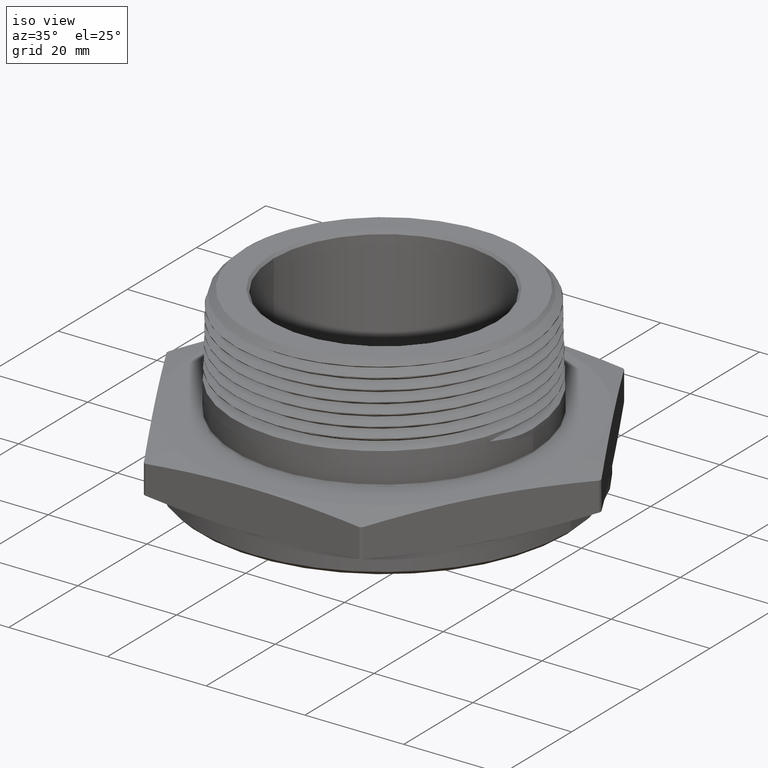
[diagram: clean part render]
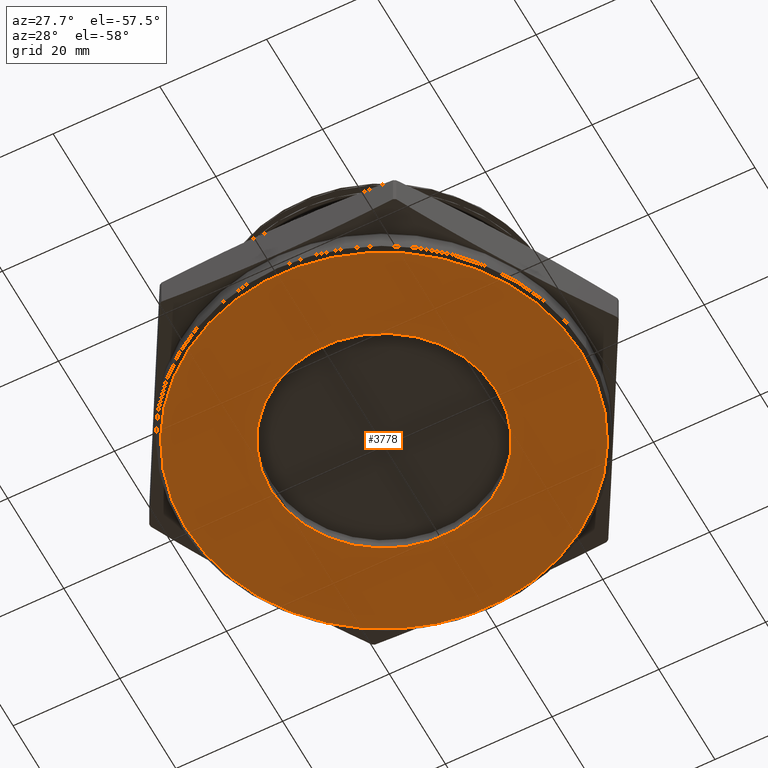
[diagram: tour spotlight — one face highlighted and labeled with its STEP entity id]
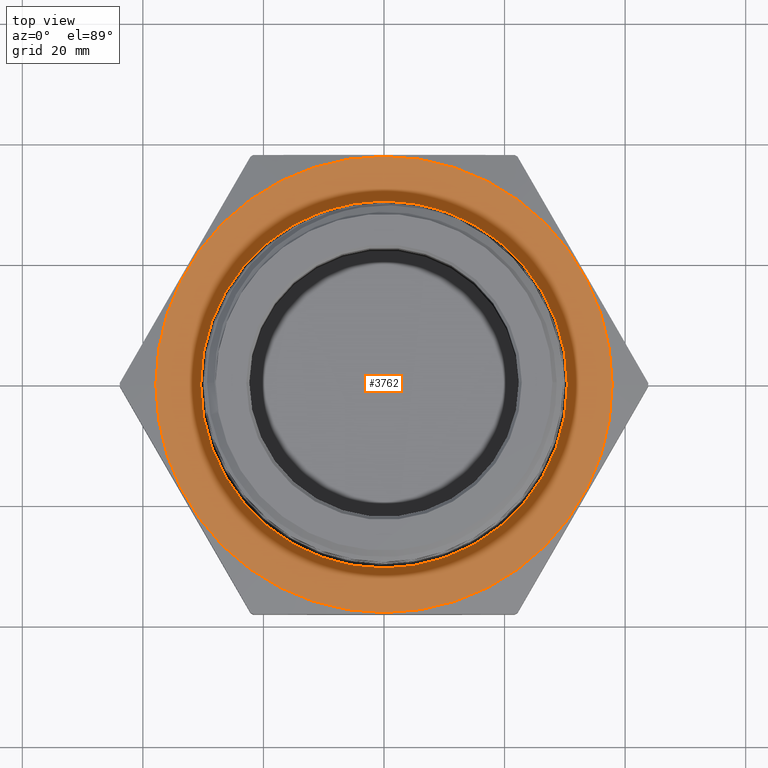
[diagram: tour spotlight — one face highlighted and labeled with its STEP entity id]
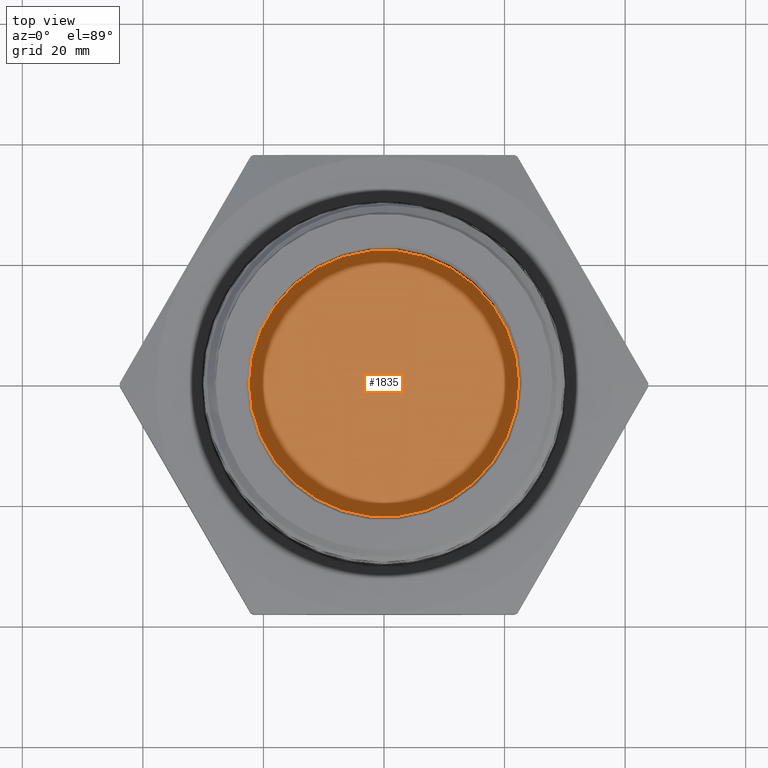
[diagram: tour spotlight — one face highlighted and labeled with its STEP entity id]
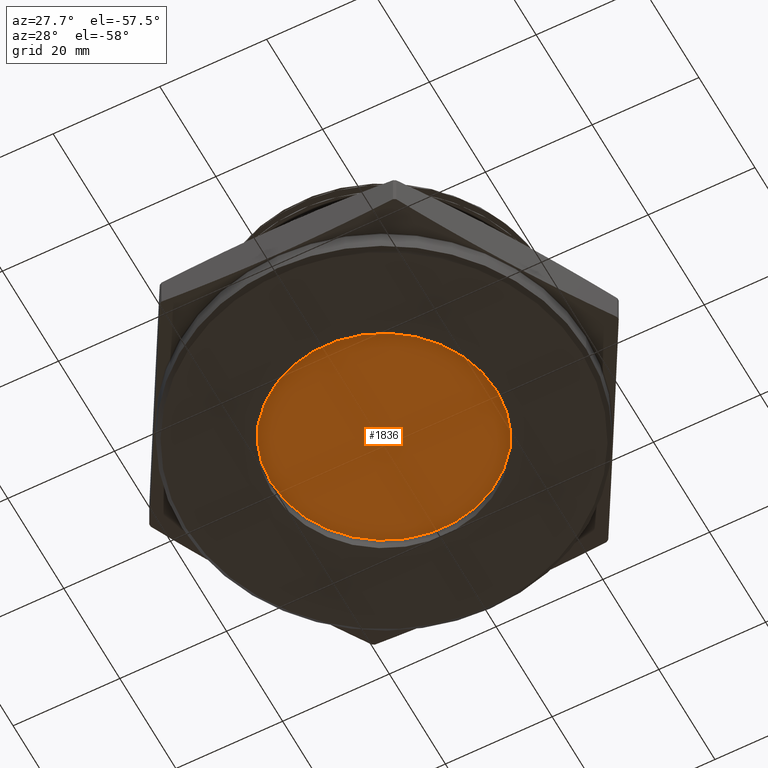
[diagram: tour spotlight — one face highlighted and labeled with its STEP entity id]
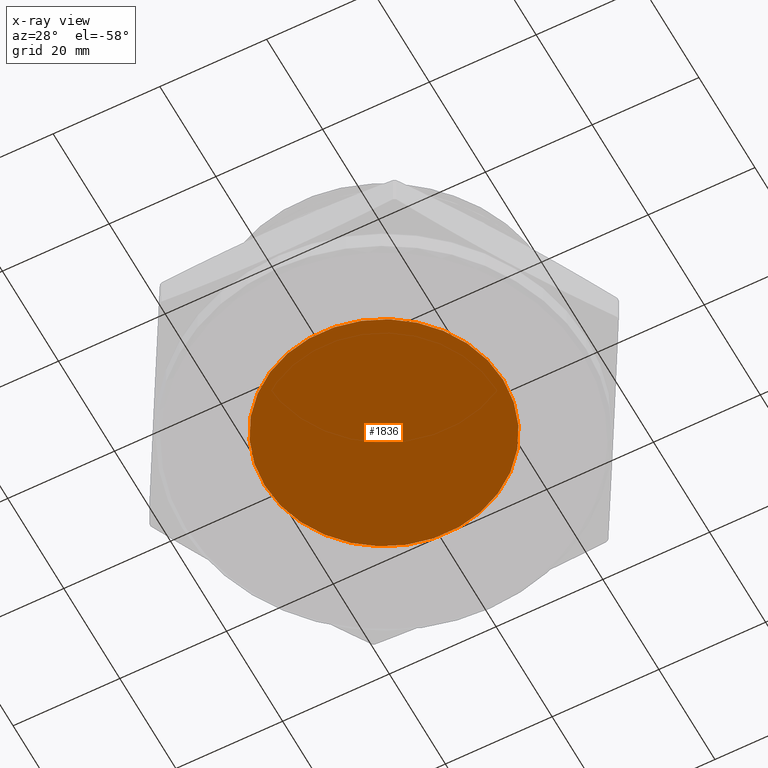
[diagram: x-ray of the same camera — body ghosted, this tour face saturated]
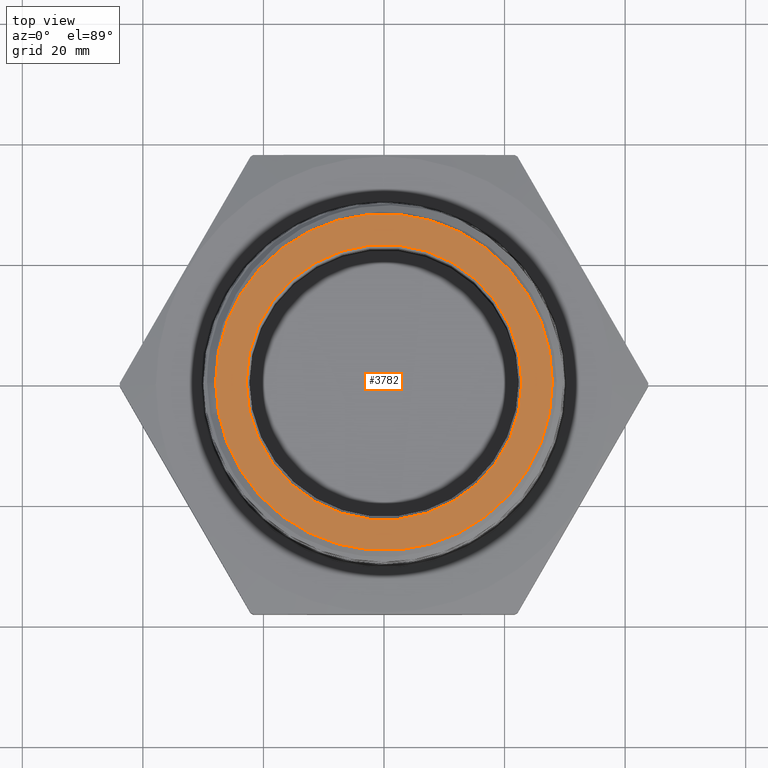
[diagram: tour spotlight — one face highlighted and labeled with its STEP entity id]
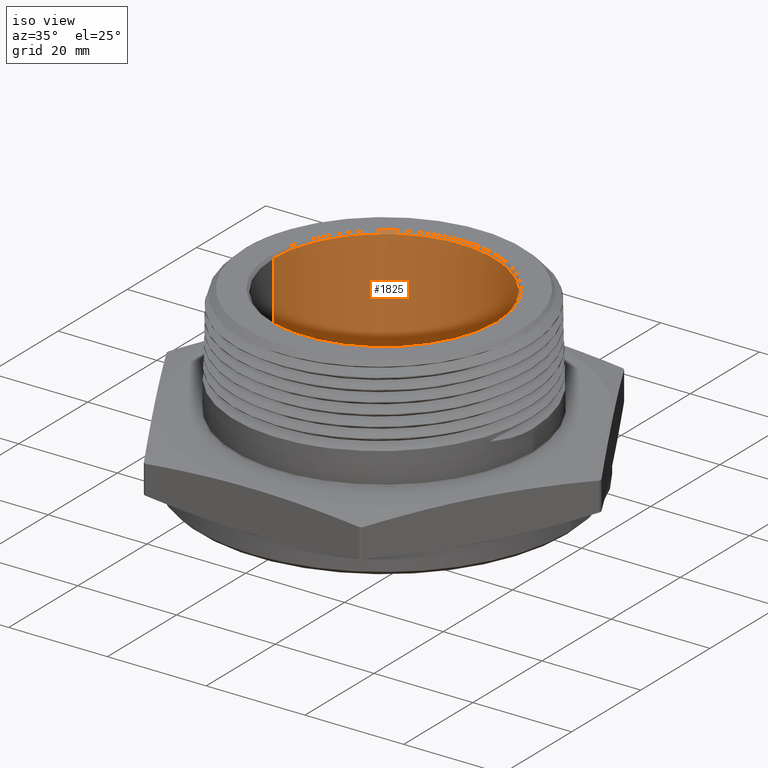
[diagram: tour spotlight — one face highlighted and labeled with its STEP entity id]
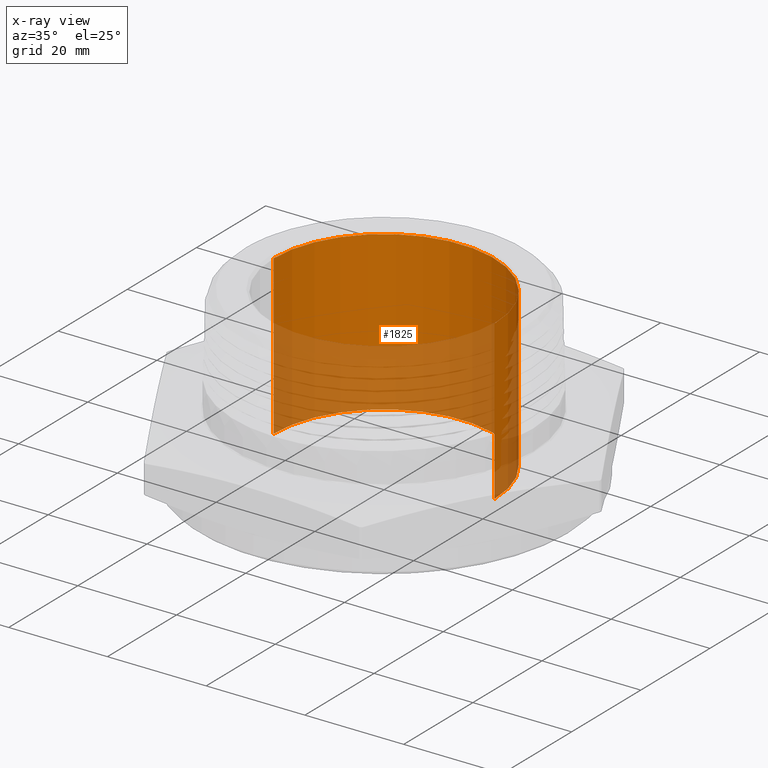
[diagram: x-ray of the same camera — body ghosted, this tour face saturated]
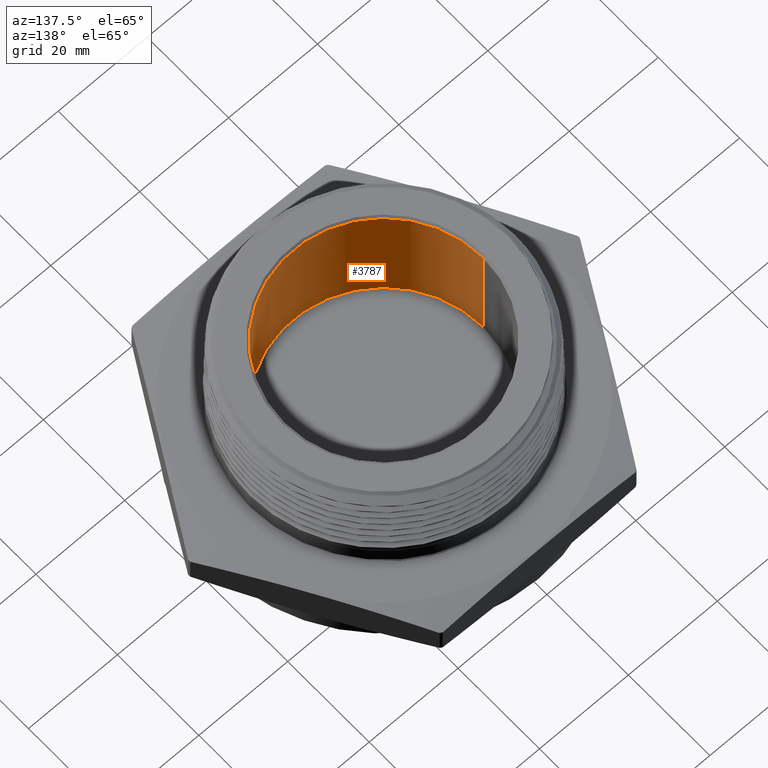
[diagram: tour spotlight — one face highlighted and labeled with its STEP entity id]
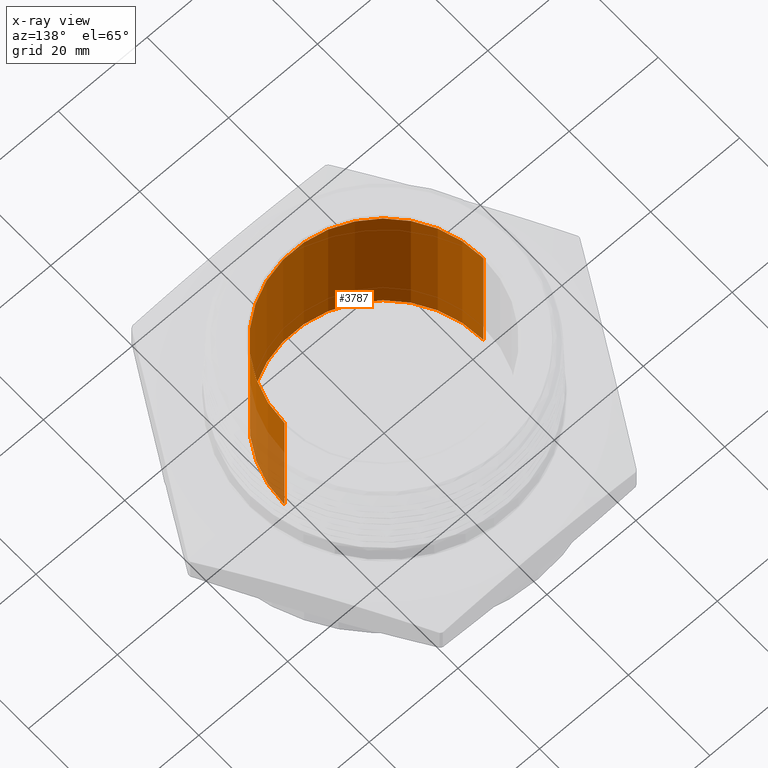
[diagram: x-ray of the same camera — body ghosted, this tour face saturated]
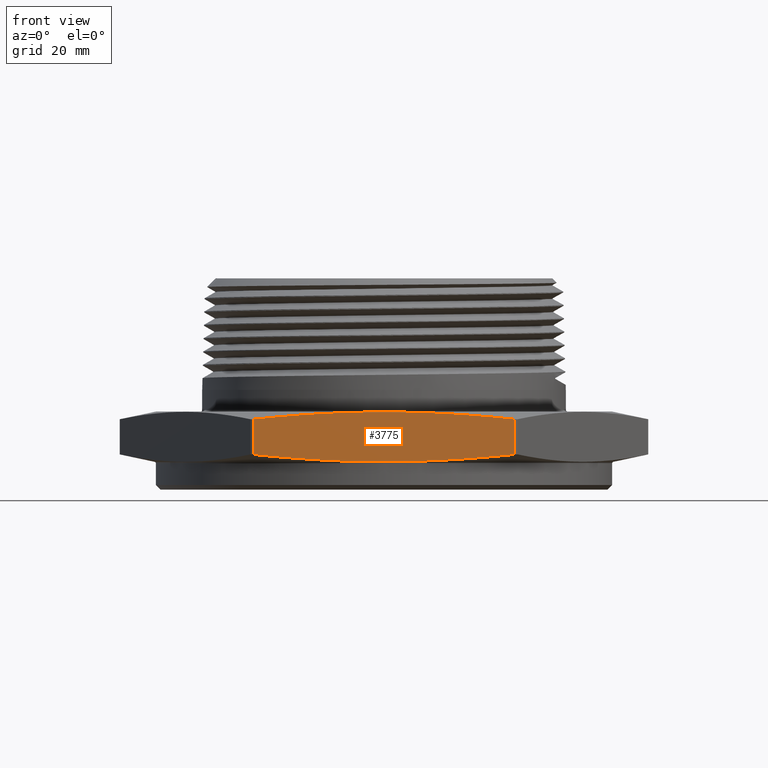
[diagram: tour spotlight — one face highlighted and labeled with its STEP entity id]
A machine part: a face-by-face anatomy tour. The part has 65 B-rep faces; the first image is the clean iso view, then the 8 largest visible faces are spotlighted one at a time (largest first), each with its STEP entity span.

Face 1 — auxiliary view, entity #3778. In plain terms, the highlighted planar face has unit normal (0, 0, -1).
Definition (entity closure, byte-faithful):
#1408 = AXIS2_PLACEMENT_3D ( 'NONE', #3516, #3515, #3520 ) ;
#1434 = AXIS2_PLACEMENT_3D ( 'NONE', #2427, #2428, #2429 ) ;
#1435 = AXIS2_PLACEMENT_3D ( 'NONE', #2430, #2431, #2432 ) ;
#1451 = AXIS2_PLACEMENT_3D ( 'NONE', #7502, #7503, #7504 ) ;
#1452 = AXIS2_PLACEMENT_3D ( 'NONE', #7508, #7509, #7510 ) ;
#1610 = VERTEX_POINT ( 'NONE', #7051 ) ;
#1614 = VERTEX_POINT ( 'NONE', #7047 ) ;
#1624 = VERTEX_POINT ( 'NONE', #7033 ) ;
#1645 = VERTEX_POINT ( 'NONE', #7012 ) ;
#1667 = EDGE_LOOP ( 'NONE', ( #7119, #7121 ) ) ;
#1677 = EDGE_LOOP ( 'NONE', ( #7112, #7113 ) ) ;
#2427 = CARTESIAN_POINT ( 'NONE',  ( 3.673940397442043000E-018, 0.0000000000000000000, -0.1800000000000000200 ) ) ;
#2428 = DIRECTION ( 'NONE',  ( -3.343854012755361800E-017, -0.0000000000000000000, -1.000000000000000000 ) ) ;
#2429 = DIRECTION ( 'NONE',  ( -1.000000000000000000, 0.0000000000000000000, 4.104338932788856500E-017 ) ) ;
#2430 = CARTESIAN_POINT ( 'NONE',  ( 0.0000000000000000000, 0.0000000000000000000, -0.1799999999999999900 ) ) ;
#2431 = DIRECTION ( 'NONE',  ( 0.0000000000000000000, 0.0000000000000000000, -1.000000000000000000 ) ) ;
#2432 = DIRECTION ( 'NONE',  ( -1.000000000000000000, 0.0000000000000000000, 0.0000000000000000000 ) ) ;
#3515 = DIRECTION ( 'NONE',  ( 0.0000000000000000000, 0.0000000000000000000, -1.000000000000000000 ) ) ;
#3516 = CARTESIAN_POINT ( 'NONE',  ( 0.0000000000000000000, 0.0000000000000000000, -0.1799999999999999900 ) ) ;
#3518 = PLANE ( 'NONE',  #1408 ) ;
#3520 = DIRECTION ( 'NONE',  ( -1.000000000000000000, 0.0000000000000000000, -0.0000000000000000000 ) ) ;
#3778 = ADVANCED_FACE ( 'NONE', ( #7711, #7719 ), #3518, .T. ) ;
#3990 = EDGE_CURVE ( 'NONE', #1614, #1645, #7822, .T. ) ;
#3991 = EDGE_CURVE ( 'NONE', #1610, #1624, #7814, .T. ) ;
#4023 = EDGE_CURVE ( 'NONE', #1624, #1610, #7856, .T. ) ;
#4025 = EDGE_CURVE ( 'NONE', #1645, #1614, #7861, .T. ) ;
#7012 = CARTESIAN_POINT ( 'NONE',  ( 0.8320000000000000700, 1.018906136890598000E-016, -0.1800000000000000500 ) ) ;
#7033 = CARTESIAN_POINT ( 'NONE',  ( -1.460000000000002000, 1.806354028742347500E-016, -0.1799999999999999900 ) ) ;
#7047 = CARTESIAN_POINT ( 'NONE',  ( -0.8320000000000000700, 0.0000000000000000000, -0.1799999999999999900 ) ) ;
#7051 = CARTESIAN_POINT ( 'NONE',  ( 1.460000000000002000, 0.0000000000000000000, -0.1799999999999999900 ) ) ;
#7112 = ORIENTED_EDGE ( 'NONE', *, *, #3990, .F. ) ;
#7113 = ORIENTED_EDGE ( 'NONE', *, *, #4025, .F. ) ;
#7119 = ORIENTED_EDGE ( 'NONE', *, *, #3991, .T. ) ;
#7121 = ORIENTED_EDGE ( 'NONE', *, *, #4023, .T. ) ;
#7502 = CARTESIAN_POINT ( 'NONE',  ( 0.0000000000000000000, 0.0000000000000000000, -0.1799999999999999900 ) ) ;
#7503 = DIRECTION ( 'NONE',  ( 0.0000000000000000000, 0.0000000000000000000, -1.000000000000000000 ) ) ;
#7504 = DIRECTION ( 'NONE',  ( -1.000000000000000000, 0.0000000000000000000, 0.0000000000000000000 ) ) ;
#7508 = CARTESIAN_POINT ( 'NONE',  ( 3.673940397442043000E-018, 0.0000000000000000000, -0.1800000000000000200 ) ) ;
#7509 = DIRECTION ( 'NONE',  ( -3.343854012755361800E-017, -0.0000000000000000000, -1.000000000000000000 ) ) ;
#7510 = DIRECTION ( 'NONE',  ( -1.000000000000000000, 0.0000000000000000000, 4.104338932788856500E-017 ) ) ;
#7711 = FACE_BOUND ( 'NONE', #1677, .T. ) ;
#7719 = FACE_OUTER_BOUND ( 'NONE', #1667, .T. ) ;
#7814 = CIRCLE ( 'NONE', #1435, 1.460000000000002000 ) ;
#7822 = CIRCLE ( 'NONE', #1434, 0.8320000000000000700 ) ;
#7856 = CIRCLE ( 'NONE', #1451, 1.460000000000002000 ) ;
#7861 = CIRCLE ( 'NONE', #1452, 0.8320000000000000700 ) ;

Face 2 — top view, entity #3762. In plain terms, the highlighted planar face has unit normal (-0, 0, 1).
Definition (entity closure, byte-faithful):
#1337 = EDGE_CURVE ( 'NONE', #1619, #1613, #1729, .T. ) ;
#1351 = AXIS2_PLACEMENT_3D ( 'NONE', #7623, #7622, #7621 ) ;
#1392 = AXIS2_PLACEMENT_3D ( 'NONE', #3461, #3460, #3465 ) ;
#1425 = AXIS2_PLACEMENT_3D ( 'NONE', #2320, #2321, #2322 ) ;
#1426 = AXIS2_PLACEMENT_3D ( 'NONE', #2325, #2326, #2327 ) ;
#1447 = AXIS2_PLACEMENT_3D ( 'NONE', #7465, #7466, #7467 ) ;
#1612 = VERTEX_POINT ( 'NONE', #7049 ) ;
#1613 = VERTEX_POINT ( 'NONE', #7048 ) ;
#1619 = VERTEX_POINT ( 'NONE', #7042 ) ;
#1640 = VERTEX_POINT ( 'NONE', #7017 ) ;
#1685 = EDGE_LOOP ( 'NONE', ( #6851, #6850 ) ) ;
#1689 = EDGE_LOOP ( 'NONE', ( #6854, #6855 ) ) ;
#1729 = CIRCLE ( 'NONE', #1351, 1.197500000000000200 ) ;
#2320 = CARTESIAN_POINT ( 'NONE',  ( 4.141455608242866600E-017, 0.0000000000000000000, 0.3299999999999998500 ) ) ;
#2321 = DIRECTION ( 'NONE',  ( -1.254986547952384500E-016, -0.0000000000000000000, -1.000000000000000000 ) ) ;
#2322 = DIRECTION ( 'NONE',  ( -1.000000000000000000, 0.0000000000000000000, 1.375091271978655600E-016 ) ) ;
#2325 = CARTESIAN_POINT ( 'NONE',  ( 0.0000000000000000000, 0.0000000000000000000, 0.3300000000000000200 ) ) ;
#2326 = DIRECTION ( 'NONE',  ( 0.0000000000000000000, -0.0000000000000000000, -1.000000000000000000 ) ) ;
#2327 = DIRECTION ( 'NONE',  ( 1.000000000000000000, 0.0000000000000000000, 0.0000000000000000000 ) ) ;
#3460 = DIRECTION ( 'NONE',  ( -0.0000000000000000000, 0.0000000000000000000, 1.000000000000000000 ) ) ;
#3461 = CARTESIAN_POINT ( 'NONE',  ( -0.8660254037844384900, -1.499999999999999800, 0.3300000000000000200 ) ) ;
#3463 = PLANE ( 'NONE',  #1392 ) ;
#3465 = DIRECTION ( 'NONE',  ( 1.000000000000000000, 0.0000000000000000000, 0.0000000000000000000 ) ) ;
#3762 = ADVANCED_FACE ( 'NONE', ( #7691, #7693 ), #3463, .T. ) ;
#3964 = EDGE_CURVE ( 'NONE', #1612, #1640, #7791, .T. ) ;
#3965 = EDGE_CURVE ( 'NONE', #1613, #1619, #7783, .T. ) ;
#4016 = EDGE_CURVE ( 'NONE', #1640, #1612, #7853, .T. ) ;
#6850 = ORIENTED_EDGE ( 'NONE', *, *, #3965, .T. ) ;
#6851 = ORIENTED_EDGE ( 'NONE', *, *, #1337, .T. ) ;
#6854 = ORIENTED_EDGE ( 'NONE', *, *, #4016, .F. ) ;
#6855 = ORIENTED_EDGE ( 'NONE', *, *, #3964, .F. ) ;
#7017 = CARTESIAN_POINT ( 'NONE',  ( -1.490000000000000400, 0.0000000000000000000, 0.3300000000000000200 ) ) ;
#7042 = CARTESIAN_POINT ( 'NONE',  ( 1.197500000000000200, 0.0000000000000000000, 0.3300000000000000200 ) ) ;
#7048 = CARTESIAN_POINT ( 'NONE',  ( -1.197500000000000200, 1.466514541978955900E-016, 0.3300000000000000200 ) ) ;
#7049 = CARTESIAN_POINT ( 'NONE',  ( 1.490000000000000400, 1.824723730729556900E-016, 0.3299999999999996300 ) ) ;
#7465 = CARTESIAN_POINT ( 'NONE',  ( 4.141455608242866600E-017, 0.0000000000000000000, 0.3299999999999998500 ) ) ;
#7466 = DIRECTION ( 'NONE',  ( -1.254986547952384500E-016, -0.0000000000000000000, -1.000000000000000000 ) ) ;
#7467 = DIRECTION ( 'NONE',  ( -1.000000000000000000, 0.0000000000000000000, 1.375091271978655600E-016 ) ) ;
#7621 = DIRECTION ( 'NONE',  ( 1.000000000000000000, 0.0000000000000000000, 0.0000000000000000000 ) ) ;
#7622 = DIRECTION ( 'NONE',  ( 0.0000000000000000000, -0.0000000000000000000, -1.000000000000000000 ) ) ;
#7623 = CARTESIAN_POINT ( 'NONE',  ( 0.0000000000000000000, 0.0000000000000000000, 0.3300000000000000200 ) ) ;
#7691 = FACE_OUTER_BOUND ( 'NONE', #1689, .T. ) ;
#7693 = FACE_BOUND ( 'NONE', #1685, .T. ) ;
#7783 = CIRCLE ( 'NONE', #1426, 1.197500000000000200 ) ;
#7791 = CIRCLE ( 'NONE', #1425, 1.490000000000000400 ) ;
#7853 = CIRCLE ( 'NONE', #1447, 1.490000000000000400 ) ;

Face 3 — top view, entity #1835. In plain terms, the highlighted planar face has unit normal (0, 0, 1).
Definition (entity closure, byte-faithful):
#1376 = AXIS2_PLACEMENT_3D ( 'NONE', #3413, #3417, #3418 ) ;
#1440 = AXIS2_PLACEMENT_3D ( 'NONE', #7422, #7423, #7424 ) ;
#1442 = AXIS2_PLACEMENT_3D ( 'NONE', #7428, #7429, #7430 ) ;
#1507 = VERTEX_POINT ( 'NONE', #7591 ) ;
#1535 = VERTEX_POINT ( 'NONE', #6970 ) ;
#1651 = EDGE_LOOP ( 'NONE', ( #6842, #6820 ) ) ;
#1835 = ADVANCED_FACE ( 'NONE', ( #7661 ), #3415, .T. ) ;
#3413 = CARTESIAN_POINT ( 'NONE',  ( 6.884040249687191000E-018, 0.0000000000000000000, 0.1160000000000000100 ) ) ;
#3415 = PLANE ( 'NONE',  #1376 ) ;
#3417 = DIRECTION ( 'NONE',  ( 0.0000000000000000000, 0.0000000000000000000, 1.000000000000000000 ) ) ;
#3418 = DIRECTION ( 'NONE',  ( 1.000000000000000000, 0.0000000000000000000, -0.0000000000000000000 ) ) ;
#4004 = EDGE_CURVE ( 'NONE', #1535, #1507, #7833, .T. ) ;
#4007 = EDGE_CURVE ( 'NONE', #1507, #1535, #7841, .T. ) ;
#6820 = ORIENTED_EDGE ( 'NONE', *, *, #4004, .T. ) ;
#6842 = ORIENTED_EDGE ( 'NONE', *, *, #4007, .T. ) ;
#6970 = CARTESIAN_POINT ( 'NONE',  ( 0.8800000000000000000, 1.077689183249670900E-016, 0.1160000000000000100 ) ) ;
#7422 = CARTESIAN_POINT ( 'NONE',  ( 6.884040249687191000E-018, 0.0000000000000000000, 0.1160000000000000100 ) ) ;
#7423 = DIRECTION ( 'NONE',  ( 0.0000000000000000000, 0.0000000000000000000, 1.000000000000000000 ) ) ;
#7424 = DIRECTION ( 'NONE',  ( 1.000000000000000000, 0.0000000000000000000, 0.0000000000000000000 ) ) ;
#7428 = CARTESIAN_POINT ( 'NONE',  ( 6.884040249687191000E-018, 0.0000000000000000000, 0.1160000000000000100 ) ) ;
#7429 = DIRECTION ( 'NONE',  ( 0.0000000000000000000, 0.0000000000000000000, 1.000000000000000000 ) ) ;
#7430 = DIRECTION ( 'NONE',  ( 1.000000000000000000, 0.0000000000000000000, 0.0000000000000000000 ) ) ;
#7591 = CARTESIAN_POINT ( 'NONE',  ( -0.8800000000000000000, 0.0000000000000000000, 0.1160000000000000100 ) ) ;
#7661 = FACE_OUTER_BOUND ( 'NONE', #1651, .T. ) ;
#7833 = CIRCLE ( 'NONE', #1440, 0.8800000000000000000 ) ;
#7841 = CIRCLE ( 'NONE', #1442, 0.8800000000000000000 ) ;

Face 4 — auxiliary view, entity #1836. An x-ray twin of the same camera follows (body ghosted, this face saturated) — the face is partly hidden behind the body. In plain terms, the highlighted planar face has unit normal (0, 0, 1).
Definition (entity closure, byte-faithful):
#1378 = AXIS2_PLACEMENT_3D ( 'NONE', #3416, #3421, #3422 ) ;
#1441 = AXIS2_PLACEMENT_3D ( 'NONE', #7425, #7426, #7427 ) ;
#1443 = AXIS2_PLACEMENT_3D ( 'NONE', #7433, #7434, #7435 ) ;
#1526 = VERTEX_POINT ( 'NONE', #7057 ) ;
#1527 = VERTEX_POINT ( 'NONE', #7038 ) ;
#1836 = ADVANCED_FACE ( 'NONE', ( #7660 ), #3414, .F. ) ;
#3414 = PLANE ( 'NONE',  #1378 ) ;
#3416 = CARTESIAN_POINT ( 'NONE',  ( 6.884040249687191000E-018, 0.0000000000000000000, -0.08400000000000001900 ) ) ;
#3421 = DIRECTION ( 'NONE',  ( 0.0000000000000000000, 0.0000000000000000000, 1.000000000000000000 ) ) ;
#3422 = DIRECTION ( 'NONE',  ( 1.000000000000000000, 0.0000000000000000000, -0.0000000000000000000 ) ) ;
#3866 = EDGE_LOOP ( 'NONE', ( #6819, #6853 ) ) ;
#4005 = EDGE_CURVE ( 'NONE', #1526, #1527, #7839, .T. ) ;
#4008 = EDGE_CURVE ( 'NONE', #1527, #1526, #7845, .T. ) ;
#6819 = ORIENTED_EDGE ( 'NONE', *, *, #4008, .F. ) ;
#6853 = ORIENTED_EDGE ( 'NONE', *, *, #4005, .F. ) ;
#7038 = CARTESIAN_POINT ( 'NONE',  ( -0.8800000000000000000, 0.0000000000000000000, -0.08400000000000001900 ) ) ;
#7057 = CARTESIAN_POINT ( 'NONE',  ( 0.8800000000000000000, 1.077689183249670900E-016, -0.08400000000000001900 ) ) ;
#7425 = CARTESIAN_POINT ( 'NONE',  ( 6.884040249687191000E-018, 0.0000000000000000000, -0.08400000000000001900 ) ) ;
#7426 = DIRECTION ( 'NONE',  ( 0.0000000000000000000, 0.0000000000000000000, 1.000000000000000000 ) ) ;
#7427 = DIRECTION ( 'NONE',  ( 1.000000000000000000, 0.0000000000000000000, 0.0000000000000000000 ) ) ;
#7433 = CARTESIAN_POINT ( 'NONE',  ( 6.884040249687191000E-018, 0.0000000000000000000, -0.08400000000000001900 ) ) ;
#7434 = DIRECTION ( 'NONE',  ( 0.0000000000000000000, 0.0000000000000000000, 1.000000000000000000 ) ) ;
#7435 = DIRECTION ( 'NONE',  ( 1.000000000000000000, 0.0000000000000000000, 0.0000000000000000000 ) ) ;
#7660 = FACE_OUTER_BOUND ( 'NONE', #3866, .T. ) ;
#7839 = CIRCLE ( 'NONE', #1441, 0.8800000000000000000 ) ;
#7845 = CIRCLE ( 'NONE', #1443, 0.8800000000000000000 ) ;

Face 5 — top view, entity #3782. In plain terms, the highlighted planar face has unit normal (0, 0, 1).
Definition (entity closure, byte-faithful):
#1412 = AXIS2_PLACEMENT_3D ( 'NONE', #3529, #3528, #3533 ) ;
#1421 = AXIS2_PLACEMENT_3D ( 'NONE', #3574, #3575, #3576 ) ;
#1422 = AXIS2_PLACEMENT_3D ( 'NONE', #3644, #3645, #3646 ) ;
#1436 = AXIS2_PLACEMENT_3D ( 'NONE', #2433, #2434, #2435 ) ;
#1455 = AXIS2_PLACEMENT_3D ( 'NONE', #7523, #7524, #7525 ) ;
#1595 = VERTEX_POINT ( 'NONE', #6971 ) ;
#1608 = VERTEX_POINT ( 'NONE', #7053 ) ;
#1643 = VERTEX_POINT ( 'NONE', #7014 ) ;
#1646 = VERTEX_POINT ( 'NONE', #7011 ) ;
#1663 = EDGE_LOOP ( 'NONE', ( #6841, #6844 ) ) ;
#1666 = EDGE_LOOP ( 'NONE', ( #7110, #6843 ) ) ;
#2433 = CARTESIAN_POINT ( 'NONE',  ( 4.981912577346603700E-017, 0.0000000000000000000, 1.200000000000000000 ) ) ;
#2434 = DIRECTION ( 'NONE',  ( -3.343854012755361800E-017, -0.0000000000000000000, -1.000000000000000000 ) ) ;
#2435 = DIRECTION ( 'NONE',  ( -1.000000000000000000, 0.0000000000000000000, 0.0000000000000000000 ) ) ;
#3528 = DIRECTION ( 'NONE',  ( 0.0000000000000000000, 0.0000000000000000000, 1.000000000000000000 ) ) ;
#3529 = CARTESIAN_POINT ( 'NONE',  ( 0.0000000000000000000, 0.0000000000000000000, 1.200000000000000000 ) ) ;
#3531 = PLANE ( 'NONE',  #1412 ) ;
#3533 = DIRECTION ( 'NONE',  ( 1.000000000000000000, 0.0000000000000000000, -0.0000000000000000000 ) ) ;
#3574 = CARTESIAN_POINT ( 'NONE',  ( 0.0000000000000000000, 0.0000000000000000000, 1.200000000000000000 ) ) ;
#3575 = DIRECTION ( 'NONE',  ( -0.0000000000000000000, -0.0000000000000000000, -1.000000000000000000 ) ) ;
#3576 = DIRECTION ( 'NONE',  ( -1.000000000000000000, 0.0000000000000000000, 0.0000000000000000000 ) ) ;
#3644 = CARTESIAN_POINT ( 'NONE',  ( 0.0000000000000000000, 0.0000000000000000000, 1.200000000000000000 ) ) ;
#3645 = DIRECTION ( 'NONE',  ( -0.0000000000000000000, -0.0000000000000000000, -1.000000000000000000 ) ) ;
#3646 = DIRECTION ( 'NONE',  ( -1.000000000000000000, 0.0000000000000000000, 0.0000000000000000000 ) ) ;
#3782 = ADVANCED_FACE ( 'NONE', ( #7667, #7717 ), #3531, .T. ) ;
#3904 = EDGE_CURVE ( 'NONE', #1608, #1646, #7750, .T. ) ;
#3909 = EDGE_CURVE ( 'NONE', #1646, #1608, #7752, .T. ) ;
#3992 = EDGE_CURVE ( 'NONE', #1643, #1595, #7823, .T. ) ;
#4032 = EDGE_CURVE ( 'NONE', #1595, #1643, #7872, .T. ) ;
#6841 = ORIENTED_EDGE ( 'NONE', *, *, #3904, .F. ) ;
#6843 = ORIENTED_EDGE ( 'NONE', *, *, #3992, .T. ) ;
#6844 = ORIENTED_EDGE ( 'NONE', *, *, #3909, .F. ) ;
#6971 = CARTESIAN_POINT ( 'NONE',  ( 0.8999999999999996900, 0.0000000000000000000, 1.200000000000000000 ) ) ;
#7011 = CARTESIAN_POINT ( 'NONE',  ( 1.099700000000000100, 1.381438622983947700E-016, 1.200000000000000000 ) ) ;
#7014 = CARTESIAN_POINT ( 'NONE',  ( -0.8999999999999996900, 1.102182119232617500E-016, 1.200000000000000000 ) ) ;
#7053 = CARTESIAN_POINT ( 'NONE',  ( -1.099700000000000100, 0.0000000000000000000, 1.200000000000000000 ) ) ;
#7110 = ORIENTED_EDGE ( 'NONE', *, *, #4032, .T. ) ;
#7523 = CARTESIAN_POINT ( 'NONE',  ( 4.981912577346603700E-017, 0.0000000000000000000, 1.200000000000000000 ) ) ;
#7524 = DIRECTION ( 'NONE',  ( -3.343854012755361800E-017, -0.0000000000000000000, -1.000000000000000000 ) ) ;
#7525 = DIRECTION ( 'NONE',  ( -1.000000000000000000, 0.0000000000000000000, 0.0000000000000000000 ) ) ;
#7667 = FACE_BOUND ( 'NONE', #1666, .T. ) ;
#7717 = FACE_OUTER_BOUND ( 'NONE', #1663, .T. ) ;
#7750 = CIRCLE ( 'NONE', #1421, 1.099700000000000100 ) ;
#7752 = CIRCLE ( 'NONE', #1422, 1.099700000000000100 ) ;
#7823 = CIRCLE ( 'NONE', #1436, 0.8999999999999996900 ) ;
#7872 = CIRCLE ( 'NONE', #1455, 0.8999999999999996900 ) ;

Face 6 — iso view, entity #1825. An x-ray twin of the same camera follows (body ghosted, this face saturated) — the face is partly hidden behind the body. In plain terms, the highlighted cylindrical surface (partial cylindrical patch) has radius 22.352 mm, axis along (-0, -0, -1).
Definition (entity closure, byte-faithful):
#1370 = AXIS2_PLACEMENT_3D ( 'NONE', #6960, #6959, #6961 ) ;
#1438 = AXIS2_PLACEMENT_3D ( 'NONE', #2439, #2440, #2441 ) ;
#1439 = AXIS2_PLACEMENT_3D ( 'NONE', #2444, #2445, #2446 ) ;
#1593 = VERTEX_POINT ( 'NONE', #7075 ) ;
#1620 = VERTEX_POINT ( 'NONE', #7041 ) ;
#1633 = VERTEX_POINT ( 'NONE', #7024 ) ;
#1641 = VERTEX_POINT ( 'NONE', #7016 ) ;
#1662 = EDGE_LOOP ( 'NONE', ( #6832, #6831, #3869, #3872 ) ) ;
#1745 = CYLINDRICAL_SURFACE ( 'NONE', #1370, 0.8799999999999998900 ) ;
#1764 = FACE_OUTER_BOUND ( 'NONE', #1662, .T. ) ;
#1825 = ADVANCED_FACE ( 'NONE', ( #1764 ), #1745, .F. ) ;
#2439 = CARTESIAN_POINT ( 'NONE',  ( 6.884040249687191000E-018, 0.0000000000000000000, -0.08400000000000001900 ) ) ;
#2440 = DIRECTION ( 'NONE',  ( -3.343854012755361800E-017, -0.0000000000000000000, -1.000000000000000000 ) ) ;
#2441 = DIRECTION ( 'NONE',  ( -1.000000000000000000, 0.0000000000000000000, 3.880465900091283000E-017 ) ) ;
#2444 = CARTESIAN_POINT ( 'NONE',  ( 4.915035497091496200E-017, 0.0000000000000000000, 1.179999999999999900 ) ) ;
#2445 = DIRECTION ( 'NONE',  ( -3.343854012755361800E-017, -0.0000000000000000000, -1.000000000000000000 ) ) ;
#2446 = DIRECTION ( 'NONE',  ( -1.000000000000000000, 0.0000000000000000000, 0.0000000000000000000 ) ) ;
#3869 = ORIENTED_EDGE ( 'NONE', *, *, #4028, .T. ) ;
#3872 = ORIENTED_EDGE ( 'NONE', *, *, #3994, .T. ) ;
#3994 = EDGE_CURVE ( 'NONE', #1620, #1633, #7825, .T. ) ;
#3995 = EDGE_CURVE ( 'NONE', #1593, #1641, #7826, .T. ) ;
#4028 = EDGE_CURVE ( 'NONE', #1593, #1620, #7866, .T. ) ;
#4030 = EDGE_CURVE ( 'NONE', #1641, #1633, #7863, .T. ) ;
#6831 = ORIENTED_EDGE ( 'NONE', *, *, #3995, .F. ) ;
#6832 = ORIENTED_EDGE ( 'NONE', *, *, #4030, .F. ) ;
#6959 = DIRECTION ( 'NONE',  ( -3.343854012755361800E-017, -0.0000000000000000000, -1.000000000000000000 ) ) ;
#6960 = CARTESIAN_POINT ( 'NONE',  ( 3.673940397442043800E-018, 0.0000000000000000000, -0.1799999999999999900 ) ) ;
#6961 = DIRECTION ( 'NONE',  ( -1.000000000000000000, 0.0000000000000000000, 3.880465900091283700E-017 ) ) ;
#7016 = CARTESIAN_POINT ( 'NONE',  ( 0.8799999999999998900, 1.077689183249670700E-016, 1.179999999999999900 ) ) ;
#7024 = CARTESIAN_POINT ( 'NONE',  ( 0.8800000000000000000, 1.077689183249671000E-016, -0.08400000000000004700 ) ) ;
#7041 = CARTESIAN_POINT ( 'NONE',  ( -0.8800000000000000000, 0.0000000000000000000, -0.08399999999999997700 ) ) ;
#7075 = CARTESIAN_POINT ( 'NONE',  ( -0.8799999999999998900, 0.0000000000000000000, 1.179999999999999900 ) ) ;
#7505 = DIRECTION ( 'NONE',  ( -3.343854012755361800E-017, -0.0000000000000000000, -1.000000000000000000 ) ) ;
#7506 = CARTESIAN_POINT ( 'NONE',  ( -0.8799999999999998900, 0.0000000000000000000, -0.1799999999999999700 ) ) ;
#7511 = DIRECTION ( 'NONE',  ( -3.343854012755361800E-017, -0.0000000000000000000, -1.000000000000000000 ) ) ;
#7517 = CARTESIAN_POINT ( 'NONE',  ( 0.8799999999999998900, 1.077689183249670700E-016, -0.1800000000000000200 ) ) ;
#7825 = CIRCLE ( 'NONE', #1438, 0.8800000000000000000 ) ;
#7826 = CIRCLE ( 'NONE', #1439, 0.8799999999999998900 ) ;
#7863 = LINE ( 'NONE', #7517, #7871 ) ;
#7866 = LINE ( 'NONE', #7506, #7868 ) ;
#7868 = VECTOR ( 'NONE', #7505, 39.37007874015748100 ) ;
#7871 = VECTOR ( 'NONE', #7511, 39.37007874015748100 ) ;

Face 7 — auxiliary view, entity #3787. An x-ray twin of the same camera follows (body ghosted, this face saturated) — the face is partly hidden behind the body. In plain terms, the highlighted cylindrical surface (partial cylindrical patch) has radius 22.352 mm, axis along (-0, -0, -1).
Definition (entity closure, byte-faithful):
#1418 = AXIS2_PLACEMENT_3D ( 'NONE', #3546, #3547, #3545 ) ;
#1454 = AXIS2_PLACEMENT_3D ( 'NONE', #7518, #7519, #7520 ) ;
#1456 = AXIS2_PLACEMENT_3D ( 'NONE', #7527, #7528, #7529 ) ;
#1570 = ORIENTED_EDGE ( 'NONE', *, *, #4034, .F. ) ;
#1571 = ORIENTED_EDGE ( 'NONE', *, *, #4030, .T. ) ;
#1572 = ORIENTED_EDGE ( 'NONE', *, *, #4029, .T. ) ;
#1573 = ORIENTED_EDGE ( 'NONE', *, *, #4028, .F. ) ;
#1593 = VERTEX_POINT ( 'NONE', #7075 ) ;
#1620 = VERTEX_POINT ( 'NONE', #7041 ) ;
#1633 = VERTEX_POINT ( 'NONE', #7024 ) ;
#1641 = VERTEX_POINT ( 'NONE', #7016 ) ;
#1716 = EDGE_LOOP ( 'NONE', ( #1570, #1571, #1572, #1573 ) ) ;
#3545 = DIRECTION ( 'NONE',  ( -1.000000000000000000, 0.0000000000000000000, 3.880465900091283700E-017 ) ) ;
#3546 = CARTESIAN_POINT ( 'NONE',  ( 3.673940397442043800E-018, 0.0000000000000000000, -0.1799999999999999900 ) ) ;
#3547 = DIRECTION ( 'NONE',  ( -3.343854012755361800E-017, -0.0000000000000000000, -1.000000000000000000 ) ) ;
#3787 = ADVANCED_FACE ( 'NONE', ( #7735 ), #7738, .F. ) ;
#4028 = EDGE_CURVE ( 'NONE', #1593, #1620, #7866, .T. ) ;
#4029 = EDGE_CURVE ( 'NONE', #1633, #1620, #7867, .T. ) ;
#4030 = EDGE_CURVE ( 'NONE', #1641, #1633, #7863, .T. ) ;
#4034 = EDGE_CURVE ( 'NONE', #1641, #1593, #7869, .T. ) ;
#7016 = CARTESIAN_POINT ( 'NONE',  ( 0.8799999999999998900, 1.077689183249670700E-016, 1.179999999999999900 ) ) ;
#7024 = CARTESIAN_POINT ( 'NONE',  ( 0.8800000000000000000, 1.077689183249671000E-016, -0.08400000000000004700 ) ) ;
#7041 = CARTESIAN_POINT ( 'NONE',  ( -0.8800000000000000000, 0.0000000000000000000, -0.08399999999999997700 ) ) ;
#7075 = CARTESIAN_POINT ( 'NONE',  ( -0.8799999999999998900, 0.0000000000000000000, 1.179999999999999900 ) ) ;
#7505 = DIRECTION ( 'NONE',  ( -3.343854012755361800E-017, -0.0000000000000000000, -1.000000000000000000 ) ) ;
#7506 = CARTESIAN_POINT ( 'NONE',  ( -0.8799999999999998900, 0.0000000000000000000, -0.1799999999999999700 ) ) ;
#7511 = DIRECTION ( 'NONE',  ( -3.343854012755361800E-017, -0.0000000000000000000, -1.000000000000000000 ) ) ;
#7517 = CARTESIAN_POINT ( 'NONE',  ( 0.8799999999999998900, 1.077689183249670700E-016, -0.1800000000000000200 ) ) ;
#7518 = CARTESIAN_POINT ( 'NONE',  ( 6.884040249687191000E-018, 0.0000000000000000000, -0.08400000000000001900 ) ) ;
#7519 = DIRECTION ( 'NONE',  ( -3.343854012755361800E-017, -0.0000000000000000000, -1.000000000000000000 ) ) ;
#7520 = DIRECTION ( 'NONE',  ( -1.000000000000000000, 0.0000000000000000000, 3.880465900091283000E-017 ) ) ;
#7527 = CARTESIAN_POINT ( 'NONE',  ( 4.915035497091496200E-017, 0.0000000000000000000, 1.179999999999999900 ) ) ;
#7528 = DIRECTION ( 'NONE',  ( -3.343854012755361800E-017, -0.0000000000000000000, -1.000000000000000000 ) ) ;
#7529 = DIRECTION ( 'NONE',  ( -1.000000000000000000, 0.0000000000000000000, 0.0000000000000000000 ) ) ;
#7735 = FACE_OUTER_BOUND ( 'NONE', #1716, .T. ) ;
#7738 = CYLINDRICAL_SURFACE ( 'NONE', #1418, 0.8799999999999998900 ) ;
#7863 = LINE ( 'NONE', #7517, #7871 ) ;
#7866 = LINE ( 'NONE', #7506, #7868 ) ;
#7867 = CIRCLE ( 'NONE', #1454, 0.8800000000000000000 ) ;
#7868 = VECTOR ( 'NONE', #7505, 39.37007874015748100 ) ;
#7869 = CIRCLE ( 'NONE', #1456, 0.8799999999999998900 ) ;
#7871 = VECTOR ( 'NONE', #7511, 39.37007874015748100 ) ;

Face 8 — front view, entity #3775. In plain terms, the highlighted planar face has unit normal (-0, 1, 0).
Definition (entity closure, byte-faithful):
#1404 = AXIS2_PLACEMENT_3D ( 'NONE', #3503, #3508, #3509 ) ;
#1520 = VERTEX_POINT ( 'NONE', #7067 ) ;
#1525 = VERTEX_POINT ( 'NONE', #7065 ) ;
#1532 = VERTEX_POINT ( 'NONE', #6974 ) ;
#1534 = VERTEX_POINT ( 'NONE', #6972 ) ;
#1672 = EDGE_LOOP ( 'NONE', ( #4040, #7109, #7125, #7131 ) ) ;
#1795 = B_SPLINE_CURVE_WITH_KNOTS ( 'NONE', 3,
 ( #2369, #2368, #2379, #2380, #2381, #2382, #2383, #2384, #2385, #2386 ),
 .UNSPECIFIED., .F., .F.,
 ( 4, 2, 2, 2, 4 ),
 ( 0.08345158036803451700, 0.09432960230049547400, 0.1052076242329564200, 0.1160856461654173600, 0.1269636680978783200 ),
 .UNSPECIFIED. ) ;
#1798 = B_SPLINE_CURVE_WITH_KNOTS ( 'NONE', 3,
 ( #2397, #2396, #2407, #2408, #2409, #2410, #2411, #2412, #2413, #2414 ),
 .UNSPECIFIED., .F., .F.,
 ( 4, 2, 2, 2, 4 ),
 ( 0.03681968275793052300, 0.04770835706127899600, 0.05859703136462747500, 0.06948570566797594700, 0.08037437997132441900 ),
 .UNSPECIFIED. ) ;
#2323 = CARTESIAN_POINT ( 'NONE',  ( -0.8539621714743442800, -1.499999999999999600, 1.071711037660509900E-016 ) ) ;
#2324 = DIRECTION ( 'NONE',  ( -1.254986547952384500E-016, -0.0000000000000000000, -1.000000000000000000 ) ) ;
#2343 = DIRECTION ( 'NONE',  ( 1.254986547952384500E-016, 0.0000000000000000000, 1.000000000000000000 ) ) ;
#2344 = CARTESIAN_POINT ( 'NONE',  ( 0.8539621714743447200, -1.499999999999999600, -1.071711037660509900E-016 ) ) ;
#2368 = CARTESIAN_POINT ( 'NONE',  ( 0.7119403689423425800, -1.499999999999999600, 0.2947611740992615000 ) ) ;
#2369 = CARTESIAN_POINT ( 'NONE',  ( 0.8539621714743447200, -1.499999999999999600, 0.2798258519637287200 ) ) ;
#2379 = CARTESIAN_POINT ( 'NONE',  ( 0.5698554412792499200, -1.499999999999999800, 0.3068817661251793100 ) ) ;
#2380 = CARTESIAN_POINT ( 'NONE',  ( 0.2855135918449002200, -1.499999999999999800, 0.3234537859857789500 ) ) ;
#2381 = CARTESIAN_POINT ( 'NONE',  ( 0.1432555716947812300, -1.499999999999999600, 0.3278562374460392000 ) ) ;
#2382 = CARTESIAN_POINT ( 'NONE',  ( -0.1414571199697155800, -1.499999999999999600, 0.3278925167374001600 ) ) ;
#2383 = CARTESIAN_POINT ( 'NONE',  ( -0.2839118229967506600, -1.499999999999999800, 0.3235249394288086100 ) ) ;
#2384 = CARTESIAN_POINT ( 'NONE',  ( -0.5689969641707450800, -1.499999999999999800, 0.3069538100608339400 ) ) ;
#2385 = CARTESIAN_POINT ( 'NONE',  ( -0.7117519576831443700, -1.499999999999999800, 0.2947809878377154500 ) ) ;
#2386 = CARTESIAN_POINT ( 'NONE',  ( -0.8539621714743442800, -1.499999999999999600, 0.2798258519637289400 ) ) ;
#2396 = CARTESIAN_POINT ( 'NONE',  ( -0.7117519576831441400, -1.500000000000000200, 0.03521901216228433300 ) ) ;
#2397 = CARTESIAN_POINT ( 'NONE',  ( -0.8539621714743442800, -1.499999999999999600, 0.05017414803627098100 ) ) ;
#2407 = CARTESIAN_POINT ( 'NONE',  ( -0.5689969641707457400, -1.499999999999999800, 0.02304618993916582000 ) ) ;
#2408 = CARTESIAN_POINT ( 'NONE',  ( -0.2839118229967513300, -1.500000000000000200, 0.006475060571191032300 ) ) ;
#2409 = CARTESIAN_POINT ( 'NONE',  ( -0.1414571199697156900, -1.499999999999999600, 0.002107483262599360500 ) ) ;
#2410 = CARTESIAN_POINT ( 'NONE',  ( 0.1432555716947810100, -1.499999999999999800, 0.002143762553960344600 ) ) ;
#2411 = CARTESIAN_POINT ( 'NONE',  ( 0.2855135918449003300, -1.499999999999999600, 0.006546214014220487500 ) ) ;
#2412 = CARTESIAN_POINT ( 'NONE',  ( 0.5698554412792498100, -1.499999999999999800, 0.02311823387482017700 ) ) ;
#2413 = CARTESIAN_POINT ( 'NONE',  ( 0.7119403689423424700, -1.499999999999999600, 0.03523882590073779800 ) ) ;
#2414 = CARTESIAN_POINT ( 'NONE',  ( 0.8539621714743447200, -1.499999999999999600, 0.05017414803627065500 ) ) ;
#3502 = PLANE ( 'NONE',  #1404 ) ;
#3503 = CARTESIAN_POINT ( 'NONE',  ( -0.8660254037844382600, -1.499999999999999800, 0.3300000000000000200 ) ) ;
#3508 = DIRECTION ( 'NONE',  ( -1.577233174527202300E-016, 1.000000000000000000, 0.0000000000000000000 ) ) ;
#3509 = DIRECTION ( 'NONE',  ( -1.000000000000000000, -1.577233174527202300E-016, 0.0000000000000000000 ) ) ;
#3775 = ADVANCED_FACE ( 'NONE', ( #7713 ), #3502, .F. ) ;
#3967 = EDGE_CURVE ( 'NONE', #1534, #1520, #7794, .T. ) ;
#3974 = EDGE_CURVE ( 'NONE', #1532, #1525, #7803, .T. ) ;
#3984 = EDGE_CURVE ( 'NONE', #1525, #1534, #1795, .T. ) ;
#3987 = EDGE_CURVE ( 'NONE', #1520, #1532, #1798, .T. ) ;
#4040 = ORIENTED_EDGE ( 'NONE', *, *, #3987, .T. ) ;
#6972 = CARTESIAN_POINT ( 'NONE',  ( -0.8539621714743442800, -1.499999999999999600, 0.2798258519637289400 ) ) ;
#6974 = CARTESIAN_POINT ( 'NONE',  ( 0.8539621714743447200, -1.499999999999999600, 0.05017414803627065500 ) ) ;
#7065 = CARTESIAN_POINT ( 'NONE',  ( 0.8539621714743447200, -1.499999999999999600, 0.2798258519637287200 ) ) ;
#7067 = CARTESIAN_POINT ( 'NONE',  ( -0.8539621714743442800, -1.499999999999999600, 0.05017414803627098100 ) ) ;
#7109 = ORIENTED_EDGE ( 'NONE', *, *, #3974, .T. ) ;
#7125 = ORIENTED_EDGE ( 'NONE', *, *, #3984, .T. ) ;
#7131 = ORIENTED_EDGE ( 'NONE', *, *, #3967, .T. ) ;
#7713 = FACE_OUTER_BOUND ( 'NONE', #1672, .T. ) ;
#7794 = LINE ( 'NONE', #2323, #7796 ) ;
#7796 = VECTOR ( 'NONE', #2324, 39.37007874015748100 ) ;
#7803 = LINE ( 'NONE', #2344, #7807 ) ;
#7807 = VECTOR ( 'NONE', #2343, 39.37007874015748100 ) ;